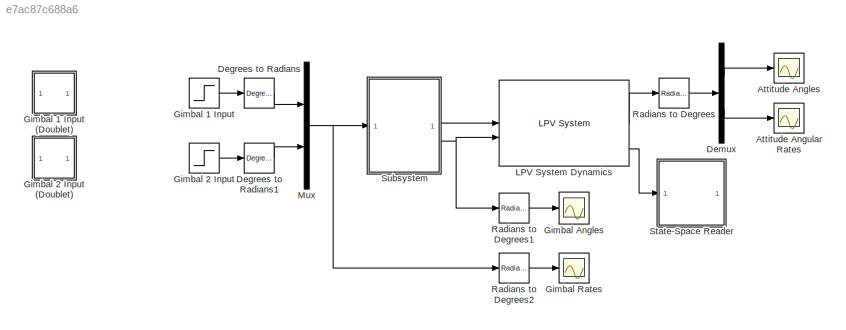
MODEL slx_e7ac87c688a6
KIND model
CONFIG AbsTol = auto
CONFIG EnableMultiTasking = off
CONFIG FixedStep = auto
CONFIG MaxStep = auto
CONFIG MinStep = auto
CONFIG RelTol = 1e-3
CONFIG SampleTimeConstraint = Unconstrained
CONFIG SolverName = VariableStepAuto
CONFIG StartTime = 0.0
CONFIG StopTime = tf
BLOCK [Scope] Attitude Angles
  Floating = off
  NumInputPorts = 1
  ScopeSpecificationString = Simulink.scopes.TimeScopeBlockCfg('CurrentConfiguration', extmgr.ConfigurationSet(extmgr.Configuration('Core','General UI',true),extmgr.Configuration('Core','Source UI',true),extmgr.Configuration('Sources','WiredSimulink',true,'DataLoggingVariableName','Attitude_Angles','DataLogging',true,'DataLoggingSaveFormat','StructureWithTime'),extmgr.Configuration('Visuals','Time Domain',true,'SerializedDisp...<+1665ch>
BLOCK [Scope] Attitude Angular Rates
  Floating = off
  NumInputPorts = 1
  ScopeSpecificationString = Simulink.scopes.TimeScopeBlockCfg('CurrentConfiguration', extmgr.ConfigurationSet(extmgr.Configuration('Core','General UI',true),extmgr.Configuration('Core','Source UI',true),extmgr.Configuration('Sources','WiredSimulink',true,'DataLoggingVariableName','Attitude_Angles_Rates','DataLogging',true,'DataLoggingSaveFormat','StructureWithTime'),extmgr.Configuration('Visuals','Time Domain',true,'Serializ...<+1664ch>
BLOCK [Reference] Degrees to Radians  REF=simulink_extras/Transformations/Degrees to
Radians
  SourceBlock = simulink_extras/Transformations/Degrees to\nRadians
  SourceType = DegreesToRadians
BLOCK [Reference] Degrees to Radians1  REF=simulink_extras/Transformations/Degrees to
Radians
  SourceBlock = simulink_extras/Transformations/Degrees to\nRadians
  SourceType = DegreesToRadians
BLOCK [Demux] Demux
  Outputs = 2
BLOCK [Step] Gimbal 1 Input
  After = 0
  SampleTime = 0
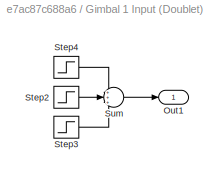
BLOCK [SubSystem] Gimbal 1 Input (Doublet)
BLOCK [Outport] Gimbal 1 Input (Doublet)/Out1
BLOCK [Step] Gimbal 1 Input (Doublet)/Step2
  After = -0.2
  SampleTime = 0
  Time = 5
BLOCK [Step] Gimbal 1 Input (Doublet)/Step3
  After = 0.1
  SampleTime = 0
  Time = 9
BLOCK [Step] Gimbal 1 Input (Doublet)/Step4
  After = 0.1
  SampleTime = 0
BLOCK [Sum] Gimbal 1 Input (Doublet)/Sum
  Inputs = +++
BLOCK [Step] Gimbal 2 Input
  After = 0
  SampleTime = 0
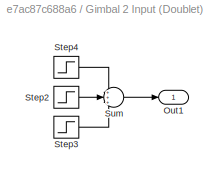
BLOCK [SubSystem] Gimbal 2 Input (Doublet)
BLOCK [Outport] Gimbal 2 Input (Doublet)/Out1
BLOCK [Step] Gimbal 2 Input (Doublet)/Step2
  After = -0.2
  SampleTime = 0
  Time = 5
BLOCK [Step] Gimbal 2 Input (Doublet)/Step3
  After = 0.1
  SampleTime = 0
  Time = 9
BLOCK [Step] Gimbal 2 Input (Doublet)/Step4
  After = 0.1
  SampleTime = 0
BLOCK [Sum] Gimbal 2 Input (Doublet)/Sum
  Inputs = +++
BLOCK [Scope] Gimbal Angles
  Floating = off
  NumInputPorts = 1
  ScopeSpecificationString = Simulink.scopes.TimeScopeBlockCfg('CurrentConfiguration', extmgr.ConfigurationSet(extmgr.Configuration('Core','General UI',true),extmgr.Configuration('Core','Source UI',true),extmgr.Configuration('Sources','WiredSimulink',true,'DataLogging',true,'DataLoggingVariableName','gamma_output','DataLoggingSaveFormat','StructureWithTime'),extmgr.Configuration('Visuals','Time Domain',true,'SerializedDisplay...<+1711ch>
BLOCK [Scope] Gimbal Rates
  Floating = off
  NumInputPorts = 1
  ScopeSpecificationString = Simulink.scopes.TimeScopeBlockCfg('CurrentConfiguration', extmgr.ConfigurationSet(extmgr.Configuration('Core','General UI',true),extmgr.Configuration('Core','Source UI',true),extmgr.Configuration('Sources','WiredSimulink',true,'DataLoggingVariableName','gamma_output_rates','DataLogging',true,'DataLoggingSaveFormat','StructureWithTime'),extmgr.Configuration('Visuals','Time Domain',true,'SerializedD...<+1699ch>
BLOCK [Reference] LPV System Dynamics  REF=cstblocks/Linear Parameter Varying/LPV System
  SourceBlock = cstblocks/Linear Parameter Varying/LPV System
  SourceType = LPV Block
BLOCK [Mux] Mux
  DisplayOption = bar
  Inputs = 2
BLOCK [Reference] Radians to Degrees  REF=simulink_extras/Transformations/Radians
to Degrees
  SourceBlock = simulink_extras/Transformations/Radians\nto Degrees
  SourceType = RadiansToDegrees
BLOCK [Reference] Radians to Degrees1  REF=simulink_extras/Transformations/Radians
to Degrees
  SourceBlock = simulink_extras/Transformations/Radians\nto Degrees
  SourceType = RadiansToDegrees
BLOCK [Reference] Radians to Degrees2  REF=simulink_extras/Transformations/Radians
to Degrees
  SourceBlock = simulink_extras/Transformations/Radians\nto Degrees
  SourceType = RadiansToDegrees
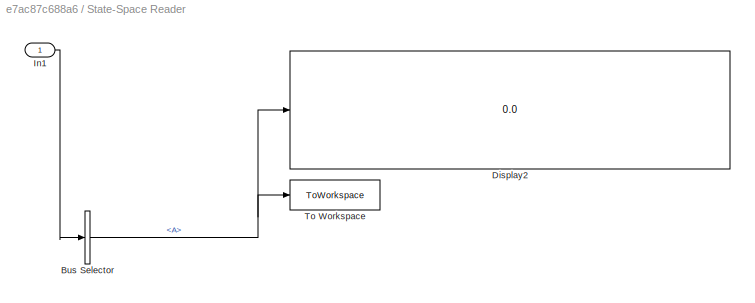
BLOCK [SubSystem] State-Space Reader
BLOCK [BusSelector] State-Space Reader/Bus Selector
  OutputSignals = A,B,C,D
BLOCK [Display] State-Space Reader/Display2
  Decimation = 1
BLOCK [Inport] State-Space Reader/In1
BLOCK [ToWorkspace] State-Space Reader/To Workspace
  FixptAsFi = on
  MaxDataPoints = inf
  SampleTime = -1
  SaveFormat = Structure With Time
  VariableName = simout
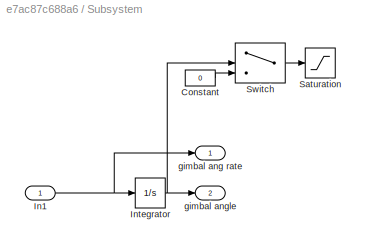
BLOCK [SubSystem] Subsystem
BLOCK [Constant] Subsystem/Constant
  Value = 0
BLOCK [Inport] Subsystem/In1
BLOCK [Integrator] Subsystem/Integrator
  InitialCondition = [gamma1_initial,gamma2_initial]
BLOCK [Saturate] Subsystem/Saturation
BLOCK [Switch] Subsystem/Switch
  Criteria = u2 > Threshold
  InputSameDT = off
  SaturateOnIntegerOverflow = off
BLOCK [Outport] Subsystem/gimbal ang rate
BLOCK [Outport] Subsystem/gimbal angle
  Port = 2
LINE Degrees to Radians1:1 -> Mux:2
LINE Degrees to Radians:1 -> Mux:1
LINE Demux:1 -> Attitude Angles:1
LINE Demux:2 -> Attitude Angular Rates:1
LINE Gimbal 1 Input (Doublet)/Step2:1 -> Gimbal 1 Input (Doublet)/Sum:2
LINE Gimbal 1 Input (Doublet)/Step3:1 -> Gimbal 1 Input (Doublet)/Sum:3
LINE Gimbal 1 Input (Doublet)/Step4:1 -> Gimbal 1 Input (Doublet)/Sum:1
LINE Gimbal 1 Input (Doublet)/Sum:1 -> Gimbal 1 Input (Doublet)/Out1:1
LINE Gimbal 1 Input:1 -> Degrees to Radians:1
LINE Gimbal 2 Input (Doublet)/Step2:1 -> Gimbal 2 Input (Doublet)/Sum:2
LINE Gimbal 2 Input (Doublet)/Step3:1 -> Gimbal 2 Input (Doublet)/Sum:3
LINE Gimbal 2 Input (Doublet)/Step4:1 -> Gimbal 2 Input (Doublet)/Sum:1
LINE Gimbal 2 Input (Doublet)/Sum:1 -> Gimbal 2 Input (Doublet)/Out1:1
LINE Gimbal 2 Input:1 -> Degrees to Radians1:1
LINE LPV System Dynamics:1 -> Radians to Degrees:1
LINE LPV System Dynamics:4 -> State-Space Reader:1
NET Mux:1 -> Radians to Degrees2:1, Subsystem:1
LINE Radians to Degrees1:1 -> Gimbal Angles:1
LINE Radians to Degrees2:1 -> Gimbal Rates:1
LINE Radians to Degrees:1 -> Demux:1
NET State-Space Reader/Bus Selector:1 -> State-Space Reader/Display2:1, State-Space Reader/To Workspace:1
LINE State-Space Reader/In1:1 -> State-Space Reader/Bus Selector:1
LINE Subsystem/Constant:1 -> Subsystem/Switch:3
NET Subsystem/In1:1 -> Subsystem/Integrator:1, Subsystem/gimbal ang rate:1
NET Subsystem/Integrator:1 -> Subsystem/Switch:2, Subsystem/gimbal angle:1
LINE Subsystem/Switch:1 -> Subsystem/Saturation:1
LINE Subsystem:1 -> LPV System Dynamics:1
NET Subsystem:2 -> LPV System Dynamics:2, Radians to Degrees1:1
note: NET lines group one-source signal fan-out (src -> all destinations, sorted); 1:1 wires keep LINE
